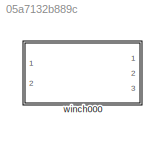
MODEL slx_05a7132b889c
KIND library
CONFIG AbsTol = auto
CONFIG EnableMultiTasking = off
CONFIG FixedStep = auto
CONFIG MaxStep = auto
CONFIG MinStep = auto
CONFIG RelTol = 1e-3
CONFIG SampleTimeConstraint = Unconstrained
CONFIG Solver = VariableStepAuto
CONFIG SolverName = VariableStepAuto
CONFIG StartTime = 0.0
CONFIG StopTime = 10.0
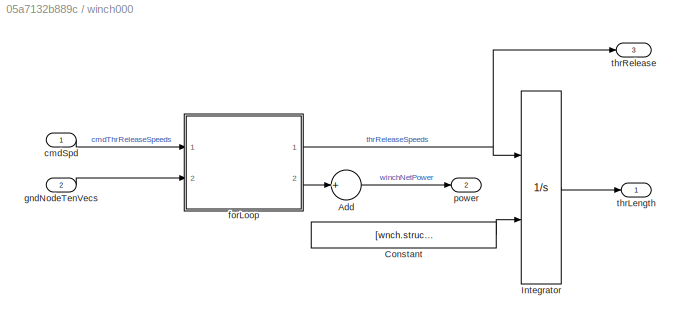
BLOCK [SubSystem] winch000
  Ports = [2, 3]
  RequestExecContextInheritance = off
  VariantControl = VSS_winch_winch000
BLOCK [Sum] winch000/Add
  InputSameDT = off
  Inputs = +
  OutDataTypeStr = Inherit: Inherit via internal rule
  Ports = [1, 1]
  SaturateOnIntegerOverflow = off
BLOCK [Constant] winch000/Constant
  Value = [wnch.struct('OCT.winch').initLength]'
  VectorParams1D = off
BLOCK [Integrator] winch000/Integrator
  InitialConditionSource = external
  Ports = [2, 1]
BLOCK [Inport] winch000/cmdSpd
  IconDisplay = Port number
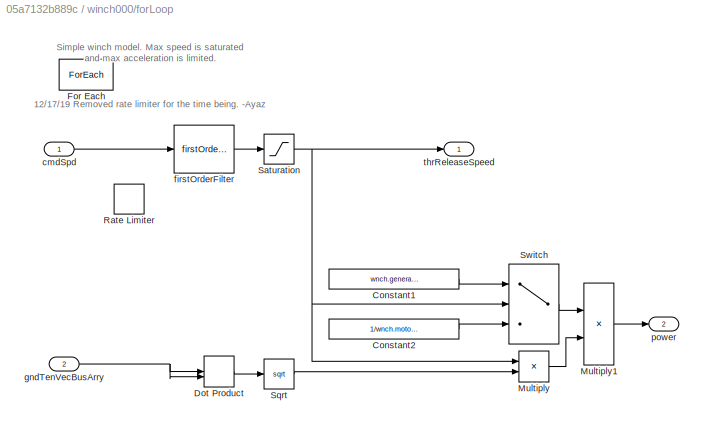
BLOCK [SubSystem] winch000/forLoop
  Ports = [2, 2]
  RequestExecContextInheritance = off
BLOCK [Constant] winch000/forLoop/Constant1
  Value = wnch.generatorEfficiency
BLOCK [Constant] winch000/forLoop/Constant2
  Value = 1/wnch.motorEfficiency
BLOCK [DotProduct] winch000/forLoop/Dot Product
  OutDataTypeStr = Inherit: Inherit via internal rule
BLOCK [ForEach] winch000/forLoop/For Each
  DisableCoverage = on
  IndexMode = One-based
  IterateSubsysMaskParameter = on
  Ports = []
  SubsysMaskParameterIterationDimension = 2
BLOCK [Product] winch000/forLoop/Multiply
  InputSameDT = off
  OutDataTypeStr = Inherit: Inherit via internal rule
  Ports = [2, 1]
  RndMeth = Floor
  SaturateOnIntegerOverflow = off
BLOCK [Product] winch000/forLoop/Multiply1
  InputSameDT = off
  OutDataTypeStr = Inherit: Inherit via internal rule
  Ports = [2, 1]
  RndMeth = Floor
  SaturateOnIntegerOverflow = off
BLOCK [RateLimiter] winch000/forLoop/Rate Limiter
  Commented = on
  FallingSlewLimit = -wnch.maxAccel
  RisingSlewLimit = wnch.maxAccel
  SampleTimeMode = inherited
BLOCK [Saturate] winch000/forLoop/Saturation
  InputPortMap = u0
  LinearizeAsGain = off
  LowerLimit = -wnch.maxSpeed
  Ports = [1, 1]
  UpperLimit = wnch.maxSpeed
BLOCK [Sqrt] winch000/forLoop/Sqrt
BLOCK [Switch] winch000/forLoop/Switch
  Criteria = u2 > Threshold
  InputSameDT = off
  SaturateOnIntegerOverflow = off
BLOCK [Inport] winch000/forLoop/cmdSpd
  IconDisplay = Port number
  Partition = on
  PartitionDimension = 1
  PartitionOffset = 0
  PartitionWidth = 1
BLOCK [Reference] winch000/forLoop/firstOrderFilter  REF=firstOrderFilter_ul/firstOrderFilter
  Ports = [1, 1]
  SourceBlock = firstOrderFilter_ul/firstOrderFilter
BLOCK [Inport] winch000/forLoop/gndTenVecBusArry
  IconDisplay = Port number
  Partition = on
  PartitionDimension = 3
  PartitionOffset = 0
  PartitionWidth = 1
  Port = 2
BLOCK [Outport] winch000/forLoop/power
  ConcatenationDimension = 1
  IconDisplay = Port number
  Port = 2
BLOCK [Outport] winch000/forLoop/thrReleaseSpeed
  ConcatenationDimension = 1
  IconDisplay = Port number
BLOCK [Inport] winch000/gndNodeTenVecs
  IconDisplay = Port number
  Port = 2
BLOCK [Outport] winch000/power
  IconDisplay = Port number
  Port = 2
BLOCK [Outport] winch000/thrLength
  IconDisplay = Port number
BLOCK [Outport] winch000/thrRelease 
  IconDisplay = Port number
  Port = 3
ANNOTATION winch000/forLoop: Simple winch model. Max speed is saturated and max acceleration is limited. 12/17/19 Removed rate limiter for the time being. -Ayaz
LINE winch000/Add:1 -> winch000/power:1
LINE winch000/Constant:1 -> winch000/Integrator:2
LINE winch000/Integrator:1 -> winch000/thrLength:1
LINE winch000/cmdSpd:1 -> winch000/forLoop:1
LINE winch000/forLoop/Constant1:1 -> winch000/forLoop/Switch:1
LINE winch000/forLoop/Constant2:1 -> winch000/forLoop/Switch:3
LINE winch000/forLoop/Dot Product:1 -> winch000/forLoop/Sqrt:1
LINE winch000/forLoop/Multiply1:1 -> winch000/forLoop/power:1
LINE winch000/forLoop/Multiply:1 -> winch000/forLoop/Multiply1:2
NET winch000/forLoop/Saturation:1 -> winch000/forLoop/Multiply:1, winch000/forLoop/Switch:2, winch000/forLoop/thrReleaseSpeed:1
LINE winch000/forLoop/Sqrt:1 -> winch000/forLoop/Multiply:2
LINE winch000/forLoop/Switch:1 -> winch000/forLoop/Multiply1:1
LINE winch000/forLoop/cmdSpd:1 -> winch000/forLoop/firstOrderFilter:1
LINE winch000/forLoop/firstOrderFilter:1 -> winch000/forLoop/Saturation:1
NET winch000/forLoop/gndTenVecBusArry:1 -> winch000/forLoop/Dot Product:1, winch000/forLoop/Dot Product:2
NET winch000/forLoop:1 -> winch000/Integrator:1, winch000/thrRelease :1
LINE winch000/forLoop:2 -> winch000/Add:1
LINE winch000/gndNodeTenVecs:1 -> winch000/forLoop:2
note: NET lines group one-source signal fan-out (src -> all destinations, sorted); 1:1 wires keep LINE
